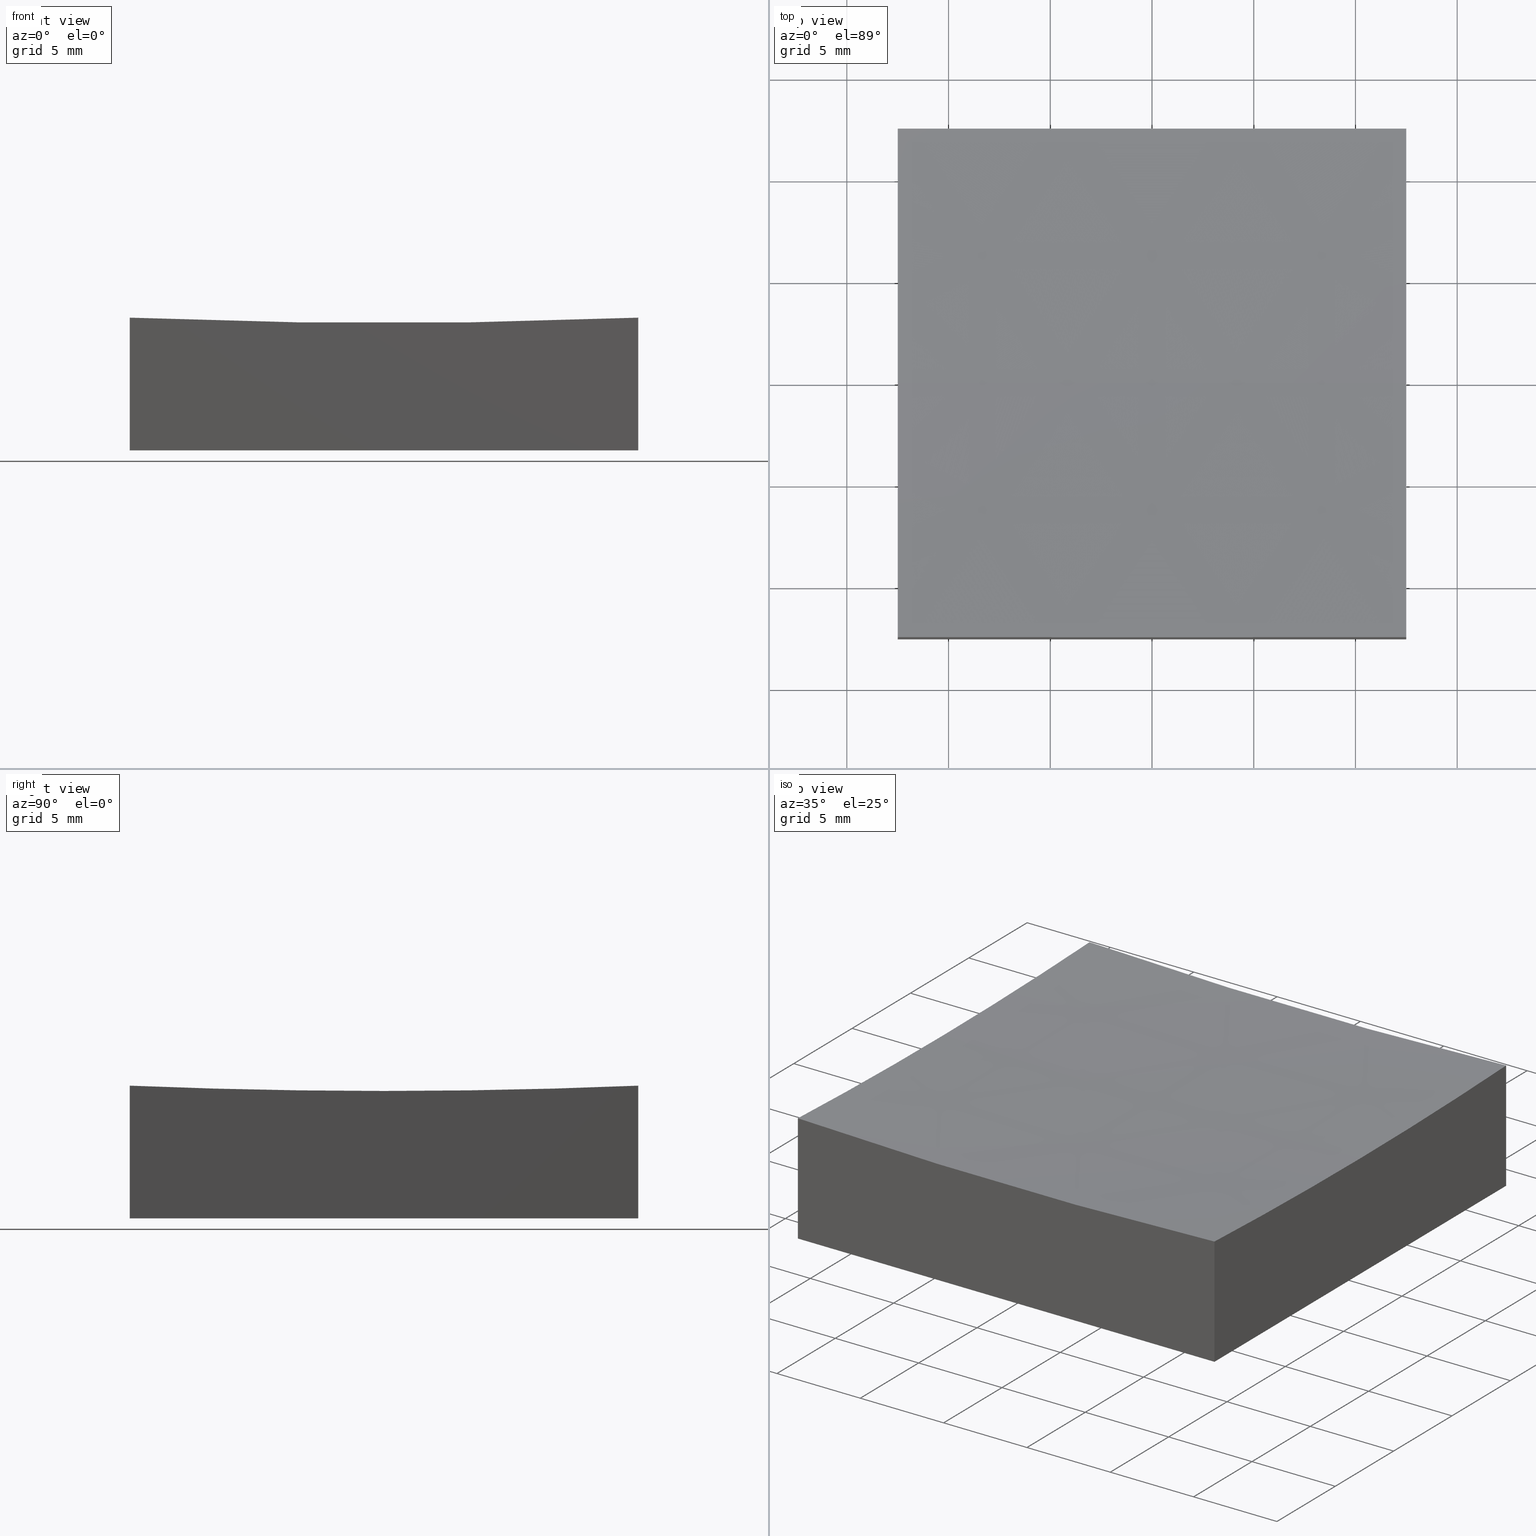
[diagram: canonical four-view strip — front | top / right | iso, engineering-drawing reading convention]
A machine part, canonical four-view strip (front | top / right | iso — engineering-drawing reading convention). The complete STEP part file that produces these views, byte-faithful:
ISO-10303-21;
HEADER;
FILE_DESCRIPTION (( 'STEP AP214' ),
    '1' );
FILE_NAME ('270039.STEP',
    '2020-06-05T06:33:37',
    ( '' ),
    ( '' ),
    'SwSTEP 2.0',
    'SolidWorks 2019',
    '' );
FILE_SCHEMA (( 'AUTOMOTIVE_DESIGN' ));
ENDSEC;

DATA;
#1 = PLANE ( 'NONE',  #123 ) ;
#2 = ADVANCED_FACE ( 'NONE', ( #30 ), #251, .T. ) ;
#3 = DIRECTION ( 'NONE',  ( 1.000000000000000000, 1.387778780781445676E-16, -0.0000000000000000000 ) ) ;
#4 = PLANE ( 'NONE',  #181 ) ;
#5 = DIRECTION ( 'NONE',  ( 1.000000000000000000, 0.0000000000000000000, 0.0000000000000000000 ) ) ;
#6 = FACE_OUTER_BOUND ( 'NONE', #189, .T. ) ;
#7 = FACE_OUTER_BOUND ( 'NONE', #125, .T. ) ;
#8 = CARTESIAN_POINT ( 'NONE',  ( 3.747419205390901213E-14, 0.0000000000000000000, 306.0000000000000000 ) ) ;
#9 = LINE ( 'NONE', #217, #92 ) ;
#10 = ADVANCED_FACE ( 'NONE', ( #31 ), #1, .F. ) ;
#11 = AXIS2_PLACEMENT_3D ( 'NONE', #211, #149, #132 ) ;
#12 = ORIENTED_EDGE ( 'NONE', *, *, #81, .F. ) ;
#13 =( NAMED_UNIT ( * ) SI_UNIT ( $, .STERADIAN. ) SOLID_ANGLE_UNIT ( ) );
#14 = ORIENTED_EDGE ( 'NONE', *, *, #185, .F. ) ;
#15 = PRODUCT_DEFINITION_SHAPE ( 'NONE', 'NONE',  #206 ) ;
#16 =( NAMED_UNIT ( * ) PLANE_ANGLE_UNIT ( ) SI_UNIT ( $, .RADIAN. ) );
#17 = EDGE_LOOP ( 'NONE', ( #207, #27, #107, #194 ) ) ;
#18 = CARTESIAN_POINT ( 'NONE',  ( -12.50000000000000000, 12.50000000000000000, 20.00000000000000000 ) ) ;
#19 = CARTESIAN_POINT ( 'NONE',  ( 3.747419205390901213E-14, 12.50000000000000000, 306.0000000000000000 ) ) ;
#20 = DIRECTION ( 'NONE',  ( 0.0000000000000000000, 0.0000000000000000000, 1.000000000000000000 ) ) ;
#21 = STYLED_ITEM ( 'NONE', ( #110 ), #106 ) ;
#22 = DIRECTION ( 'NONE',  ( 0.0000000000000000000, 0.0000000000000000000, -1.000000000000000000 ) ) ;
#23 = DIRECTION ( 'NONE',  ( 1.000000000000000000, 1.387778780781445676E-16, -0.0000000000000000000 ) ) ;
#24 = LINE ( 'NONE', #102, #214 ) ;
#25 = LINE ( 'NONE', #244, #105 ) ;
#26 = ORIENTED_EDGE ( 'NONE', *, *, #185, .T. ) ;
#27 = ORIENTED_EDGE ( 'NONE', *, *, #104, .T. ) ;
#28 = ORIENTED_EDGE ( 'NONE', *, *, #100, .F. ) ;
#29 = SURFACE_STYLE_FILL_AREA ( #176 ) ;
#30 = FACE_OUTER_BOUND ( 'NONE', #17, .T. ) ;
#31 = FACE_OUTER_BOUND ( 'NONE', #55, .T. ) ;
#32 = AXIS2_PLACEMENT_3D ( 'NONE', #58, #84, #117 ) ;
#33 = VERTEX_POINT ( 'NONE', #134 ) ;
#34 = FACE_OUTER_BOUND ( 'NONE', #133, .T. ) ;
#35 = DIRECTION ( 'NONE',  ( -1.388985020714326984E-16, 1.000000000000000000, 0.0000000000000000000 ) ) ;
#36 = DIRECTION ( 'NONE',  ( 0.0000000000000000000, 1.000000000000000000, 0.0000000000000000000 ) ) ;
#37 = APPLICATION_CONTEXT ( 'automotive_design' ) ;
#38 = COLOUR_RGB ( '',1.000000000000000000, 1.000000000000000000, 1.000000000000000000 ) ;
#39 = CARTESIAN_POINT ( 'NONE',  ( -12.50000000000000000, 12.50000000000000000, 6.521286232226586321 ) ) ;
#40 = DIRECTION ( 'NONE',  ( -1.387778780781445676E-16, 1.000000000000000000, 0.0000000000000000000 ) ) ;
#41 = DIRECTION ( 'NONE',  ( 1.000000000000000000, 0.0000000000000000000, 0.0000000000000000000 ) ) ;
#42 = ADVANCED_FACE ( 'NONE', ( #215 ), #195, .F. ) ;
#43 = DIRECTION ( 'NONE',  ( -0.0000000000000000000, -0.0000000000000000000, -1.000000000000000000 ) ) ;
#44 = AXIS2_PLACEMENT_3D ( 'NONE', #243, #36, #20 ) ;
#45 = AXIS2_PLACEMENT_3D ( 'NONE', #88, #141, #41 ) ;
#46 = CLOSED_SHELL ( 'NONE', ( #222, #2, #10, #196, #144, #113, #42 ) ) ;
#47 = ORIENTED_EDGE ( 'NONE', *, *, #74, .T. ) ;
#48 = SURFACE_SIDE_STYLE ('',( #29 ) ) ;
#49 = APPLICATION_CONTEXT ( 'automotive_design' ) ;
#50 = ORIENTED_EDGE ( 'NONE', *, *, #143, .T. ) ;
#51 = AXIS2_PLACEMENT_3D ( 'NONE', #19, #221, #154 ) ;
#52 = EDGE_CURVE ( 'NONE', #232, #75, #111, .T. ) ;
#53 = ORIENTED_EDGE ( 'NONE', *, *, #191, .T. ) ;
#54 = PRODUCT ( '270039', '270039', '', ( #252 ) ) ;
#55 = EDGE_LOOP ( 'NONE', ( #112, #53, #47, #249, #50 ) ) ;
#56 = DIRECTION ( 'NONE',  ( -1.387778780781445676E-16, 1.000000000000000000, 0.0000000000000000000 ) ) ;
#57 = AXIS2_PLACEMENT_3D ( 'NONE', #8, #140, #22 ) ;
#58 = CARTESIAN_POINT ( 'NONE',  ( -12.49999999999999822, -1.734723475976812025E-15, 306.0000000000000000 ) ) ;
#59 = SURFACE_STYLE_USAGE ( .BOTH. , #80 ) ;
#60 = CARTESIAN_POINT ( 'NONE',  ( -12.50000000000000000, 1.530808498934197438E-15, 6.260529792955105144 ) ) ;
#61 = CARTESIAN_POINT ( 'NONE',  ( -12.50000000000000000, 12.50000000000000000, 0.0000000000000000000 ) ) ;
#62 = AXIS2_PLACEMENT_3D ( 'NONE', #116, #101, #85 ) ;
#63 = SPHERICAL_SURFACE ( 'NONE', #45, 299.9999999999999432 ) ;
#64 = DIRECTION ( 'NONE',  ( 1.000000000000000000, 0.0000000000000000000, 0.0000000000000000000 ) ) ;
#65 = LINE ( 'NONE', #159, #95 ) ;
#66 = CIRCLE ( 'NONE', #67, 299.7394702070449171 ) ;
#67 = AXIS2_PLACEMENT_3D ( 'NONE', #183, #23, #119 ) ;
#68 = VERTEX_POINT ( 'NONE', #115 ) ;
#69 = DIRECTION ( 'NONE',  ( -0.0000000000000000000, -0.0000000000000000000, -1.000000000000000000 ) ) ;
#70 = UNCERTAINTY_MEASURE_WITH_UNIT (LENGTH_MEASURE( 1.000000000000000082E-05 ), #174, 'distance_accuracy_value', 'NONE');
#71 = VERTEX_POINT ( 'NONE', #197 ) ;
#72 = VERTEX_POINT ( 'NONE', #156 ) ;
#73 = APPLICATION_PROTOCOL_DEFINITION ( 'draft international standard', 'automotive_design', 1998, #49 ) ;
#74 = EDGE_CURVE ( 'NONE', #151, #75, #192, .T. ) ;
#75 = VERTEX_POINT ( 'NONE', #39 ) ;
#76 =( GEOMETRIC_REPRESENTATION_CONTEXT ( 3 ) GLOBAL_UNCERTAINTY_ASSIGNED_CONTEXT ( ( #167 ) ) GLOBAL_UNIT_ASSIGNED_CONTEXT ( ( #216, #239, #138 ) ) REPRESENTATION_CONTEXT ( 'NONE', 'WORKASPACE' ) );
#77 =( LENGTH_UNIT ( ) NAMED_UNIT ( * ) SI_UNIT ( .MILLI., .METRE. ) );
#78 = ORIENTED_EDGE ( 'NONE', *, *, #114, .F. ) ;
#79 = CARTESIAN_POINT ( 'NONE',  ( -12.50000000000000000, 12.50000000000000000, 20.00000000000000000 ) ) ;
#80 = SURFACE_SIDE_STYLE ('',( #218 ) ) ;
#81 = EDGE_CURVE ( 'NONE', #33, #93, #139, .T. ) ;
#82 = MANIFOLD_SOLID_BREP ( '�г�-��ת2', #46 ) ;
#83 = LINE ( 'NONE', #122, #209 ) ;
#84 = DIRECTION ( 'NONE',  ( 1.000000000000000000, 1.387778780781445676E-16, -0.0000000000000000000 ) ) ;
#85 = DIRECTION ( 'NONE',  ( -1.000000000000000000, 0.0000000000000000000, -0.0000000000000000000 ) ) ;
#86 = DIRECTION ( 'NONE',  ( -0.0000000000000000000, -0.0000000000000000000, -1.000000000000000000 ) ) ;
#87 = AXIS2_PLACEMENT_3D ( 'NONE', #136, #3, #35 ) ;
#88 = CARTESIAN_POINT ( 'NONE',  ( 3.747419205390901213E-14, 0.0000000000000000000, 306.0000000000000000 ) ) ;
#89 = PLANE ( 'NONE',  #193 ) ;
#90 = EDGE_CURVE ( 'NONE', #75, #71, #137, .T. ) ;
#91 = AXIS2_PLACEMENT_3D ( 'NONE', #202, #225, #163 ) ;
#92 = VECTOR ( 'NONE', #238, 1000.000000000000000 ) ;
#93 = VERTEX_POINT ( 'NONE', #97 ) ;
#94 = DIRECTION ( 'NONE',  ( 0.0000000000000000000, 1.000000000000000000, 0.0000000000000000000 ) ) ;
#95 = VECTOR ( 'NONE', #64, 1000.000000000000000 ) ;
#96 = ORIENTED_EDGE ( 'NONE', *, *, #245, .T. ) ;
#97 = CARTESIAN_POINT ( 'NONE',  ( 12.50000000000000355, 0.0000000000000000000, 6.260529792955105144 ) ) ;
#98 = CARTESIAN_POINT ( 'NONE',  ( 12.50000000000000355, -12.50000000000000000, 20.00000000000000000 ) ) ;
#99 = DIRECTION ( 'NONE',  ( 1.000000000000000000, 0.0000000000000000000, 0.0000000000000000000 ) ) ;
#100 = EDGE_CURVE ( 'NONE', #72, #93, #220, .T. ) ;
#101 = DIRECTION ( 'NONE',  ( 0.0000000000000000000, 0.0000000000000000000, -1.000000000000000000 ) ) ;
#102 = CARTESIAN_POINT ( 'NONE',  ( -12.49999999999999645, -12.50000000000000000, 20.00000000000000000 ) ) ;
#103 = PLANE ( 'NONE',  #62 ) ;
#104 = EDGE_CURVE ( 'NONE', #232, #186, #25, .T. ) ;
#105 = VECTOR ( 'NONE', #86, 1000.000000000000000 ) ;
#106 = ADVANCED_BREP_SHAPE_REPRESENTATION ( '270039', ( #82, #11 ), #226 ) ;
#107 = ORIENTED_EDGE ( 'NONE', *, *, #128, .F. ) ;
#108 = ORIENTED_EDGE ( 'NONE', *, *, #128, .T. ) ;
#109 = ORIENTED_EDGE ( 'NONE', *, *, #52, .T. ) ;
#110 = PRESENTATION_STYLE_ASSIGNMENT (( #169 ) ) ;
#111 = CIRCLE ( 'NONE', #51, 299.7394702070449171 ) ;
#112 = ORIENTED_EDGE ( 'NONE', *, *, #245, .F. ) ;
#113 = ADVANCED_FACE ( 'NONE', ( #34 ), #103, .T. ) ;
#114 = EDGE_CURVE ( 'NONE', #186, #210, #83, .T. ) ;
#115 = CARTESIAN_POINT ( 'NONE',  ( -12.49999999999999645, -12.50000000000000000, 6.521286232226586321 ) ) ;
#116 = CARTESIAN_POINT ( 'NONE',  ( 0.0000000000000000000, 0.0000000000000000000, 0.0000000000000000000 ) ) ;
#117 = DIRECTION ( 'NONE',  ( -1.388985020714326984E-16, 1.000000000000000000, 0.0000000000000000000 ) ) ;
#118 = VECTOR ( 'NONE', #99, 1000.000000000000000 ) ;
#119 = DIRECTION ( 'NONE',  ( -1.388985020714326984E-16, 1.000000000000000000, 0.0000000000000000000 ) ) ;
#120 = DIRECTION ( 'NONE',  ( -0.0000000000000000000, -0.0000000000000000000, -1.000000000000000000 ) ) ;
#121 = CARTESIAN_POINT ( 'NONE',  ( 3.747419205390901213E-14, 0.0000000000000000000, 306.0000000000000000 ) ) ;
#122 = CARTESIAN_POINT ( 'NONE',  ( 12.50000000000000000, 12.50000000000000000, 0.0000000000000000000 ) ) ;
#123 = AXIS2_PLACEMENT_3D ( 'NONE', #79, #234, #56 ) ;
#124 = EDGE_CURVE ( 'NONE', #72, #151, #246, .T. ) ;
#125 = EDGE_LOOP ( 'NONE', ( #28, #229, #153, #228, #130 ) ) ;
#126 =( NAMED_UNIT ( * ) PLANE_ANGLE_UNIT ( ) SI_UNIT ( $, .RADIAN. ) );
#127 =( NAMED_UNIT ( * ) SI_UNIT ( $, .STERADIAN. ) SOLID_ANGLE_UNIT ( ) );
#128 = EDGE_CURVE ( 'NONE', #71, #186, #219, .T. ) ;
#129 = MECHANICAL_DESIGN_GEOMETRIC_PRESENTATION_REPRESENTATION (  '', ( #172 ), #76 ) ;
#130 = ORIENTED_EDGE ( 'NONE', *, *, #81, .T. ) ;
#131 = ORIENTED_EDGE ( 'NONE', *, *, #100, .T. ) ;
#132 = DIRECTION ( 'NONE',  ( 1.000000000000000000, 0.0000000000000000000, 0.0000000000000000000 ) ) ;
#133 = EDGE_LOOP ( 'NONE', ( #108, #147, #14, #148 ) ) ;
#134 = CARTESIAN_POINT ( 'NONE',  ( 12.50000000000000355, -12.50000000000000000, 6.521286232226586321 ) ) ;
#135 = PRESENTATION_STYLE_ASSIGNMENT (( #59 ) ) ;
#136 = CARTESIAN_POINT ( 'NONE',  ( 12.50000000000000178, 1.734723475976802164E-15, 306.0000000000000000 ) ) ;
#137 = LINE ( 'NONE', #240, #199 ) ;
#138 =( NAMED_UNIT ( * ) SI_UNIT ( $, .STERADIAN. ) SOLID_ANGLE_UNIT ( ) );
#139 = CIRCLE ( 'NONE', #87, 299.7394702070449171 ) ;
#140 = DIRECTION ( 'NONE',  ( 0.0000000000000000000, -1.000000000000000000, 0.0000000000000000000 ) ) ;
#141 = DIRECTION ( 'NONE',  ( -0.0000000000000000000, 1.000000000000000000, 0.0000000000000000000 ) ) ;
#142 = CARTESIAN_POINT ( 'NONE',  ( -12.49999999999999645, -12.50000000000000000, 0.0000000000000000000 ) ) ;
#143 = EDGE_CURVE ( 'NONE', #71, #231, #9, .T. ) ;
#144 = ADVANCED_FACE ( 'NONE', ( #161 ), #4, .T. ) ;
#145 = CIRCLE ( 'NONE', #44, 299.7394702070449171 ) ;
#146 = ORIENTED_EDGE ( 'NONE', *, *, #171, .F. ) ;
#147 = ORIENTED_EDGE ( 'NONE', *, *, #114, .T. ) ;
#148 = ORIENTED_EDGE ( 'NONE', *, *, #143, .F. ) ;
#149 = DIRECTION ( 'NONE',  ( 0.0000000000000000000, 0.0000000000000000000, 1.000000000000000000 ) ) ;
#150 = PRODUCT_DEFINITION_FORMATION_WITH_SPECIFIED_SOURCE ( '�κ�', '', #54, .NOT_KNOWN. ) ;
#151 = VERTEX_POINT ( 'NONE', #60 ) ;
#152 = SHAPE_DEFINITION_REPRESENTATION ( #15, #106 ) ;
#153 = ORIENTED_EDGE ( 'NONE', *, *, #191, .F. ) ;
#154 = DIRECTION ( 'NONE',  ( 0.0000000000000000000, 0.0000000000000000000, 1.000000000000000000 ) ) ;
#155 = DIRECTION ( 'NONE',  ( -1.000000000000000000, 1.224646799147353207E-16, 0.0000000000000000000 ) ) ;
#156 = CARTESIAN_POINT ( 'NONE',  ( 6.431938274691235722E-14, 0.0000000000000000000, 6.000000000000060396 ) ) ;
#157 = CARTESIAN_POINT ( 'NONE',  ( 12.50000000000000355, -12.50000000000000000, 0.0000000000000000000 ) ) ;
#158 = COLOUR_RGB ( '',1.000000000000000000, 1.000000000000000000, 1.000000000000000000 ) ;
#159 = CARTESIAN_POINT ( 'NONE',  ( -12.49999999999999645, -12.50000000000000000, 0.0000000000000000000 ) ) ;
#160 = EDGE_CURVE ( 'NONE', #33, #68, #145, .T. ) ;
#161 = FACE_OUTER_BOUND ( 'NONE', #165, .T. ) ;
#162 = PRODUCT_RELATED_PRODUCT_CATEGORY ( 'part', '', ( #54 ) ) ;
#163 = DIRECTION ( 'NONE',  ( -1.388985020714326984E-16, 1.000000000000000000, 0.0000000000000000000 ) ) ;
#164 = CIRCLE ( 'NONE', #91, 299.7394702070449171 ) ;
#165 = EDGE_LOOP ( 'NONE', ( #12, #212, #78, #168, #190 ) ) ;
#166 =( GEOMETRIC_REPRESENTATION_CONTEXT ( 3 ) GLOBAL_UNCERTAINTY_ASSIGNED_CONTEXT ( ( #70 ) ) GLOBAL_UNIT_ASSIGNED_CONTEXT ( ( #174, #126, #127 ) ) REPRESENTATION_CONTEXT ( 'NONE', 'WORKASPACE' ) );
#167 = UNCERTAINTY_MEASURE_WITH_UNIT (LENGTH_MEASURE( 1.000000000000000082E-05 ), #216, 'distance_accuracy_value', 'NONE');
#168 = ORIENTED_EDGE ( 'NONE', *, *, #104, .F. ) ;
#169 = SURFACE_STYLE_USAGE ( .BOTH. , #48 ) ;
#170 = ORIENTED_EDGE ( 'NONE', *, *, #235, .T. ) ;
#171 = EDGE_CURVE ( 'NONE', #33, #210, #203, .T. ) ;
#172 = STYLED_ITEM ( 'NONE', ( #135 ), #82 ) ;
#173 = ORIENTED_EDGE ( 'NONE', *, *, #160, .T. ) ;
#174 =( LENGTH_UNIT ( ) NAMED_UNIT ( * ) SI_UNIT ( .MILLI., .METRE. ) );
#175 = ORIENTED_EDGE ( 'NONE', *, *, #74, .F. ) ;
#176 = FILL_AREA_STYLE ('',( #230 ) ) ;
#177 = DIRECTION ( 'NONE',  ( 0.0000000000000000000, -0.0000000000000000000, 1.000000000000000000 ) ) ;
#178 = DIRECTION ( 'NONE',  ( -0.0000000000000000000, 1.000000000000000000, 0.0000000000000000000 ) ) ;
#179 = CARTESIAN_POINT ( 'NONE',  ( -12.49999999999999645, -12.50000000000000000, 20.00000000000000000 ) ) ;
#180 = DIRECTION ( 'NONE',  ( 0.0000000000000000000, 1.000000000000000000, 0.0000000000000000000 ) ) ;
#181 = AXIS2_PLACEMENT_3D ( 'NONE', #198, #223, #40 ) ;
#182 = DIRECTION ( 'NONE',  ( 1.224646799147353207E-16, 1.000000000000000000, 3.459826704919666981E-33 ) ) ;
#183 = CARTESIAN_POINT ( 'NONE',  ( -12.49999999999999822, -1.734723475976812025E-15, 306.0000000000000000 ) ) ;
#184 = AXIS2_PLACEMENT_3D ( 'NONE', #208, #178, #5 ) ;
#185 = EDGE_CURVE ( 'NONE', #231, #210, #65, .T. ) ;
#186 = VERTEX_POINT ( 'NONE', #201 ) ;
#187 = VECTOR ( 'NONE', #120, 1000.000000000000000 ) ;
#188 = UNCERTAINTY_MEASURE_WITH_UNIT (LENGTH_MEASURE( 1.000000000000000082E-05 ), #77, 'distance_accuracy_value', 'NONE');
#189 = EDGE_LOOP ( 'NONE', ( #146, #173, #96, #26 ) ) ;
#190 = ORIENTED_EDGE ( 'NONE', *, *, #235, .F. ) ;
#191 = EDGE_CURVE ( 'NONE', #68, #151, #66, .T. ) ;
#192 = CIRCLE ( 'NONE', #32, 299.7394702070449171 ) ;
#193 = AXIS2_PLACEMENT_3D ( 'NONE', #179, #180, #177 ) ;
#194 = ORIENTED_EDGE ( 'NONE', *, *, #90, .F. ) ;
#195 = SPHERICAL_SURFACE ( 'NONE', #184, 299.9999999999999432 ) ;
#196 = ADVANCED_FACE ( 'NONE', ( #6 ), #89, .F. ) ;
#197 = CARTESIAN_POINT ( 'NONE',  ( -12.50000000000000000, 12.50000000000000000, 0.0000000000000000000 ) ) ;
#198 = CARTESIAN_POINT ( 'NONE',  ( 12.50000000000000000, 12.50000000000000000, 20.00000000000000000 ) ) ;
#199 = VECTOR ( 'NONE', #43, 1000.000000000000000 ) ;
#200 = FILL_AREA_STYLE ('',( #237 ) ) ;
#201 = CARTESIAN_POINT ( 'NONE',  ( 12.50000000000000000, 12.50000000000000000, 0.0000000000000000000 ) ) ;
#202 = CARTESIAN_POINT ( 'NONE',  ( 12.50000000000000178, 1.734723475976802164E-15, 306.0000000000000000 ) ) ;
#203 = LINE ( 'NONE', #98, #187 ) ;
#204 = ORIENTED_EDGE ( 'NONE', *, *, #124, .F. ) ;
#205 = AXIS2_PLACEMENT_3D ( 'NONE', #121, #182, #155 ) ;
#206 = PRODUCT_DEFINITION ( 'δ֪', '', #150, #247 ) ;
#207 = ORIENTED_EDGE ( 'NONE', *, *, #52, .F. ) ;
#208 = CARTESIAN_POINT ( 'NONE',  ( 3.747419205390901213E-14, 0.0000000000000000000, 306.0000000000000000 ) ) ;
#209 = VECTOR ( 'NONE', #224, 1000.000000000000000 ) ;
#210 = VERTEX_POINT ( 'NONE', #157 ) ;
#211 = CARTESIAN_POINT ( 'NONE',  ( 0.0000000000000000000, 0.0000000000000000000, 0.0000000000000000000 ) ) ;
#212 = ORIENTED_EDGE ( 'NONE', *, *, #171, .T. ) ;
#213 = DIRECTION ( 'NONE',  ( 0.0000000000000000000, -0.0000000000000000000, 1.000000000000000000 ) ) ;
#214 = VECTOR ( 'NONE', #69, 1000.000000000000000 ) ;
#215 = FACE_OUTER_BOUND ( 'NONE', #233, .T. ) ;
#216 =( LENGTH_UNIT ( ) NAMED_UNIT ( * ) SI_UNIT ( .MILLI., .METRE. ) );
#217 = CARTESIAN_POINT ( 'NONE',  ( -12.50000000000000000, 12.50000000000000000, 0.0000000000000000000 ) ) ;
#218 = SURFACE_STYLE_FILL_AREA ( #200 ) ;
#219 = LINE ( 'NONE', #61, #118 ) ;
#220 = CIRCLE ( 'NONE', #57, 299.9999999999999432 ) ;
#221 = DIRECTION ( 'NONE',  ( 0.0000000000000000000, 1.000000000000000000, 0.0000000000000000000 ) ) ;
#222 = ADVANCED_FACE ( 'NONE', ( #7 ), #63, .F. ) ;
#223 = DIRECTION ( 'NONE',  ( 1.000000000000000000, 1.387778780781445676E-16, -0.0000000000000000000 ) ) ;
#224 = DIRECTION ( 'NONE',  ( 1.387778780781445676E-16, -1.000000000000000000, 0.0000000000000000000 ) ) ;
#225 = DIRECTION ( 'NONE',  ( 1.000000000000000000, 1.387778780781445676E-16, -0.0000000000000000000 ) ) ;
#226 =( GEOMETRIC_REPRESENTATION_CONTEXT ( 3 ) GLOBAL_UNCERTAINTY_ASSIGNED_CONTEXT ( ( #188 ) ) GLOBAL_UNIT_ASSIGNED_CONTEXT ( ( #77, #16, #13 ) ) REPRESENTATION_CONTEXT ( 'NONE', 'WORKASPACE' ) );
#227 = PRESENTATION_LAYER_ASSIGNMENT (  '', '', ( #172 ) ) ;
#228 = ORIENTED_EDGE ( 'NONE', *, *, #160, .F. ) ;
#229 = ORIENTED_EDGE ( 'NONE', *, *, #124, .T. ) ;
#230 = FILL_AREA_STYLE_COLOUR ( '', #158 ) ;
#231 = VERTEX_POINT ( 'NONE', #142 ) ;
#232 = VERTEX_POINT ( 'NONE', #242 ) ;
#233 = EDGE_LOOP ( 'NONE', ( #204, #131, #170, #109, #175 ) ) ;
#234 = DIRECTION ( 'NONE',  ( 1.000000000000000000, 1.387778780781445676E-16, -0.0000000000000000000 ) ) ;
#235 = EDGE_CURVE ( 'NONE', #93, #232, #164, .T. ) ;
#236 = MECHANICAL_DESIGN_GEOMETRIC_PRESENTATION_REPRESENTATION (  '', ( #21 ), #166 ) ;
#237 = FILL_AREA_STYLE_COLOUR ( '', #38 ) ;
#238 = DIRECTION ( 'NONE',  ( 1.387778780781445676E-16, -1.000000000000000000, 0.0000000000000000000 ) ) ;
#239 =( NAMED_UNIT ( * ) PLANE_ANGLE_UNIT ( ) SI_UNIT ( $, .RADIAN. ) );
#240 = CARTESIAN_POINT ( 'NONE',  ( -12.50000000000000000, 12.50000000000000000, 20.00000000000000000 ) ) ;
#241 = PRESENTATION_LAYER_ASSIGNMENT (  '', '', ( #21 ) ) ;
#242 = CARTESIAN_POINT ( 'NONE',  ( 12.50000000000000000, 12.50000000000000000, 6.521286232226586321 ) ) ;
#243 = CARTESIAN_POINT ( 'NONE',  ( 3.747419205390901213E-14, -12.50000000000000000, 306.0000000000000000 ) ) ;
#244 = CARTESIAN_POINT ( 'NONE',  ( 12.50000000000000000, 12.50000000000000000, 20.00000000000000000 ) ) ;
#245 = EDGE_CURVE ( 'NONE', #68, #231, #24, .T. ) ;
#246 = CIRCLE ( 'NONE', #205, 299.9999999999999432 ) ;
#247 = PRODUCT_DEFINITION_CONTEXT ( 'detailed design', #49, 'design' ) ;
#248 = APPLICATION_PROTOCOL_DEFINITION ( 'draft international standard', 'automotive_design', 1998, #37 ) ;
#249 = ORIENTED_EDGE ( 'NONE', *, *, #90, .T. ) ;
#250 = AXIS2_PLACEMENT_3D ( 'NONE', #18, #94, #213 ) ;
#251 = PLANE ( 'NONE',  #250 ) ;
#252 = PRODUCT_CONTEXT ( 'NONE', #37, 'mechanical' ) ;
ENDSEC;
END-ISO-10303-21;
